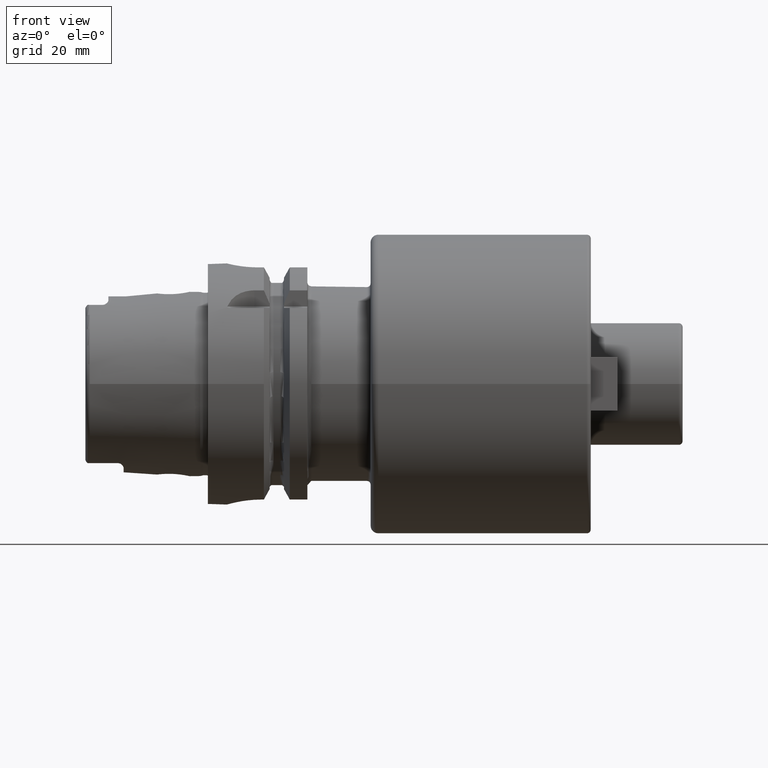
[diagram: clean part render]
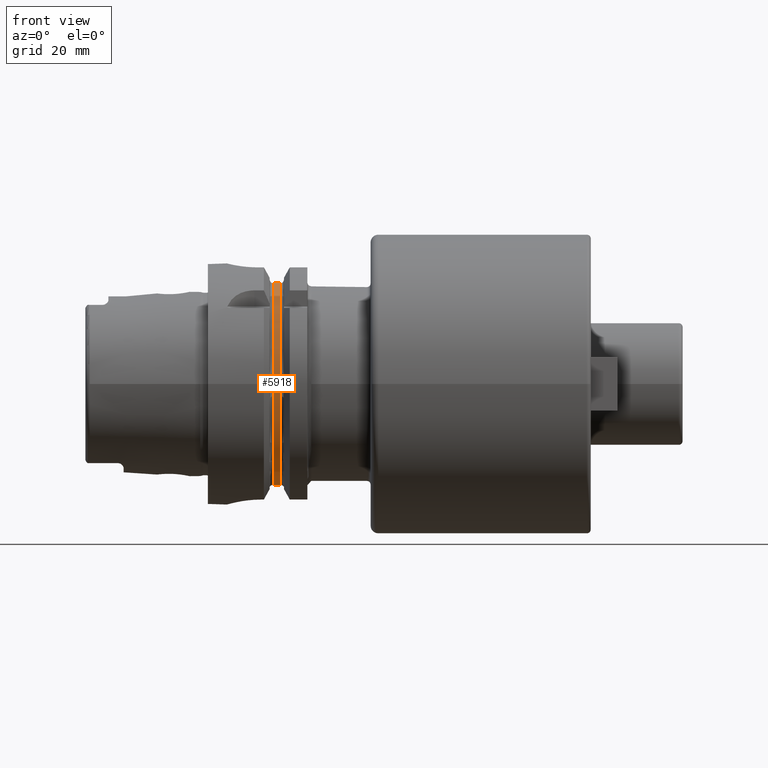
[diagram: same view with one face highlighted and labeled with its STEP entity id]
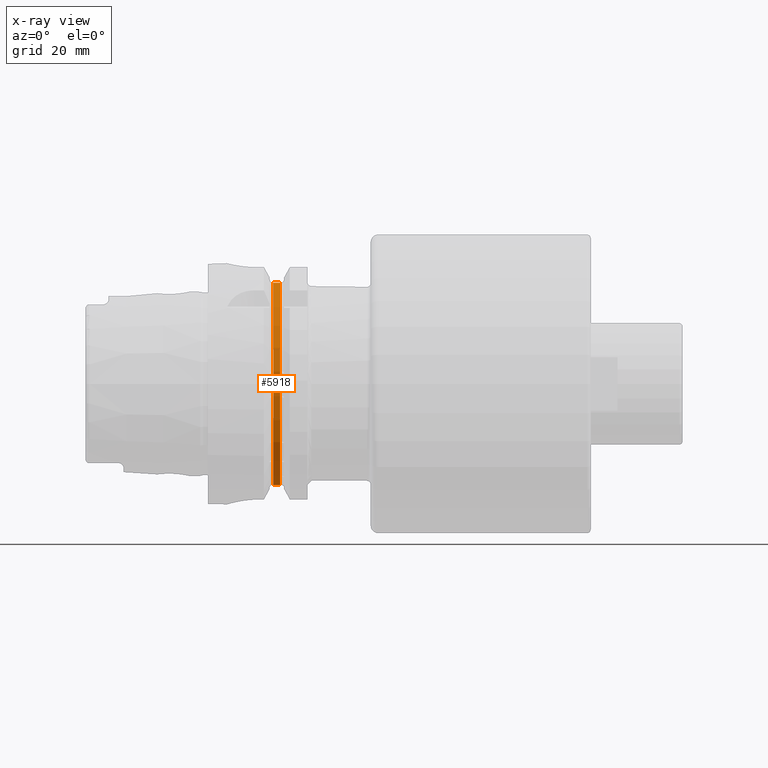
[diagram: x-ray of the same camera — body ghosted, the highlighted face saturated]
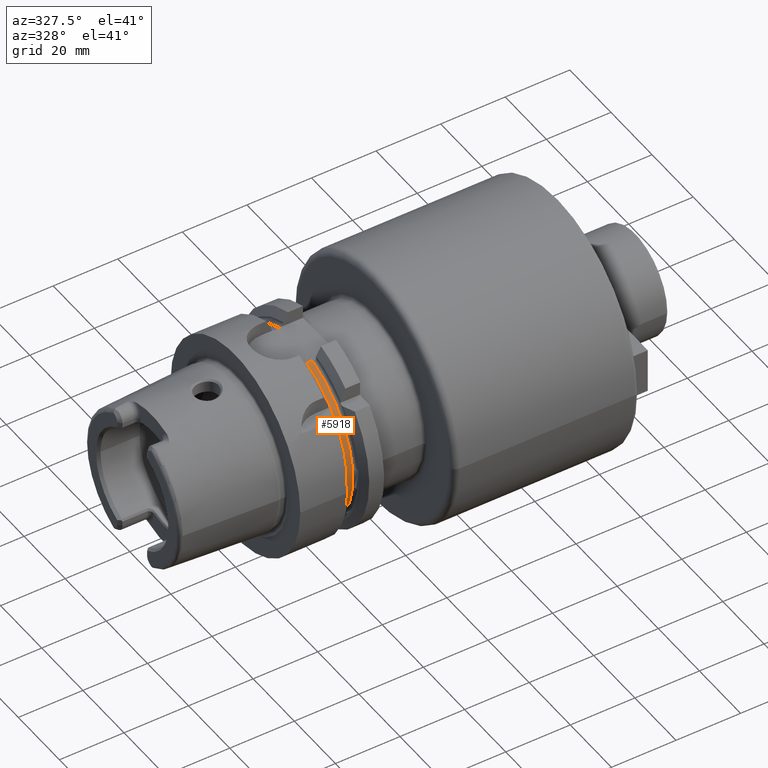
[diagram: same view with one face highlighted and labeled with its STEP entity id]
A machine part, front view. The second image highlights one B-rep face of the part: STEP entity #5918.
The next image is the same camera in x-ray: the body ghosted, the highlighted face saturated — about 0% of this face is hidden behind the body in this view.
A second angle (auxiliary view) of the same face is appended — the face is thin or edge-on in the first view.
In plain terms, the highlighted cylindrical surface (partial cylindrical patch) has radius 27.5 mm, axis along (1, 0, 0).
Its self-contained STEP definition (entity closure, byte-faithful):
#1286=CARTESIAN_POINT('',(1.7125E1,-7.7E0,2.64E1));
#2202=CARTESIAN_POINT('',(1.8875E1,0.E0,0.E0));
#2203=DIRECTION('',(-1.E0,0.E0,0.E0));
#2204=DIRECTION('',(0.E0,-2.8E-1,-9.6E-1));
#2205=AXIS2_PLACEMENT_3D('',#2202,#2203,#2204);
#2243=DIRECTION('',(1.E0,0.E0,0.E0));
#2244=VECTOR('',#2243,1.75E0);
#2245=CARTESIAN_POINT('',(1.7125E1,-7.7E0,-2.64E1));
#2246=LINE('',#2245,#2244);
#2247=CARTESIAN_POINT('',(1.7125E1,0.E0,0.E0));
#2248=DIRECTION('',(-1.E0,0.E0,0.E0));
#2249=DIRECTION('',(0.E0,-2.8E-1,-9.6E-1));
#2250=AXIS2_PLACEMENT_3D('',#2247,#2248,#2249);
#2252=DIRECTION('',(1.E0,0.E0,0.E0));
#2253=VECTOR('',#2252,1.75E0);
#2254=CARTESIAN_POINT('',(1.7125E1,-7.7E0,2.64E1));
#2255=LINE('',#2254,#2253);
#3197=VERTEX_POINT('',#1286);
#3200=CARTESIAN_POINT('',(1.8875E1,-7.7E0,2.64E1));
#3201=VERTEX_POINT('',#3200);
#3224=CARTESIAN_POINT('',(1.7125E1,-7.7E0,-2.64E1));
#3225=CARTESIAN_POINT('',(1.8875E1,-7.7E0,-2.64E1));
#3226=VERTEX_POINT('',#3224);
#3227=VERTEX_POINT('',#3225);
#5907=CARTESIAN_POINT('',(1.415E1,0.E0,0.E0));
#5908=DIRECTION('',(1.E0,0.E0,0.E0));
#5909=DIRECTION('',(0.E0,-1.E0,0.E0));
#5910=AXIS2_PLACEMENT_3D('',#5907,#5908,#5909);
#5911=CYLINDRICAL_SURFACE('',#5910,2.75E1);
#5912=ORIENTED_EDGE('',*,*,#4886,.F.);
#5913=ORIENTED_EDGE('',*,*,#4769,.T.);
#5914=ORIENTED_EDGE('',*,*,#4961,.T.);
#5915=ORIENTED_EDGE('',*,*,#5887,.F.);
#5916=EDGE_LOOP('',(#5912,#5913,#5914,#5915));
#5917=FACE_OUTER_BOUND('',#5916,.F.);
#5918=ADVANCED_FACE('',(#5917),#5911,.T.);
#2206=CIRCLE('',#2205,2.75E1);
#2251=CIRCLE('',#2250,2.75E1);
#4769=EDGE_CURVE('',#3226,#3197,#2251,.T.);
#4886=EDGE_CURVE('',#3226,#3227,#2246,.T.);
#4961=EDGE_CURVE('',#3197,#3201,#2255,.T.);
#5887=EDGE_CURVE('',#3227,#3201,#2206,.T.);